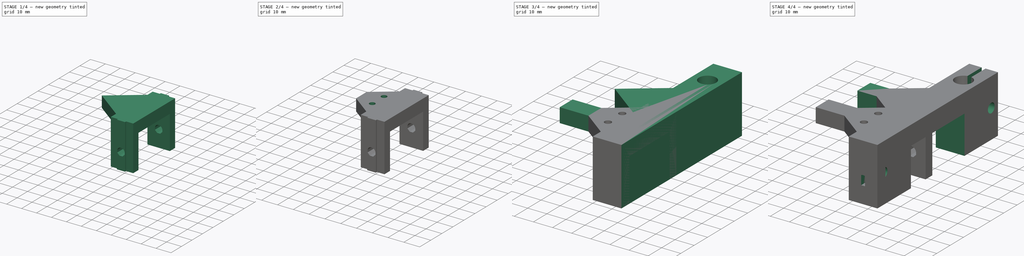
[diagram: build sequence overview — one tinted view per stage of 4, left to right]
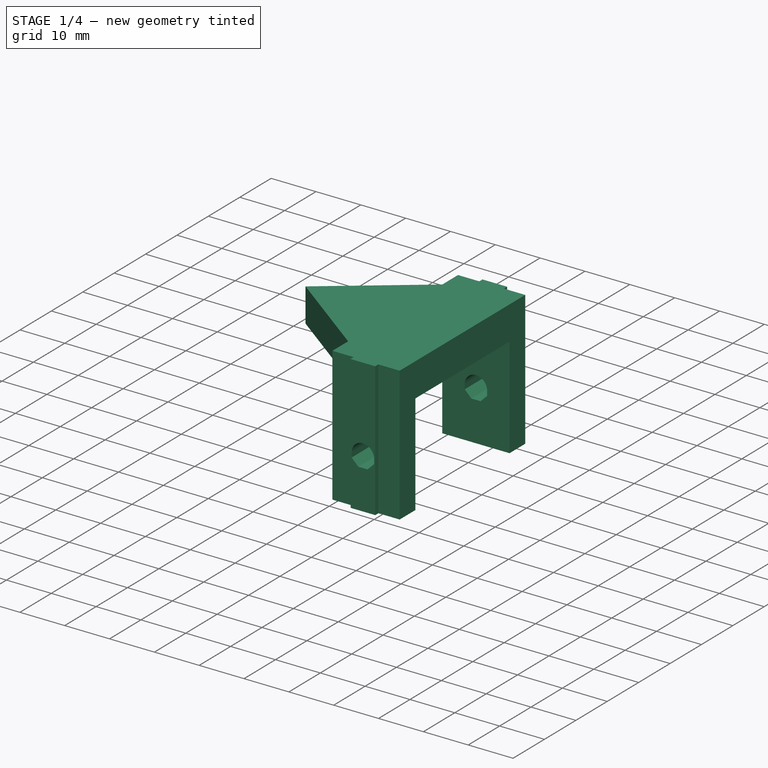
[diagram: stage 1 of 4 — iso view after this stage's code; geometry added in this stage tinted green]
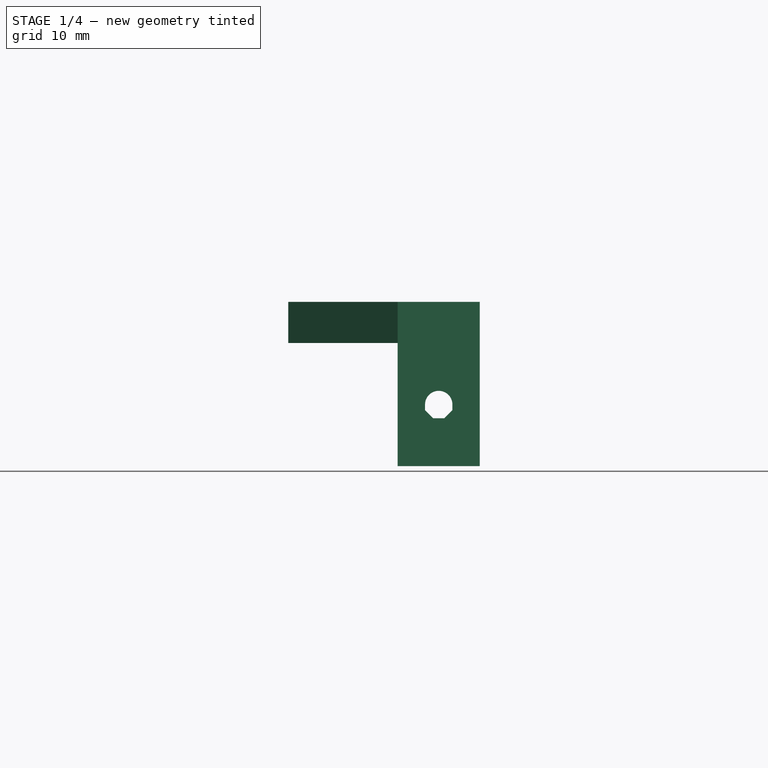
[diagram: stage 1 of 4 — front view after this stage's code; geometry added in this stage tinted green]
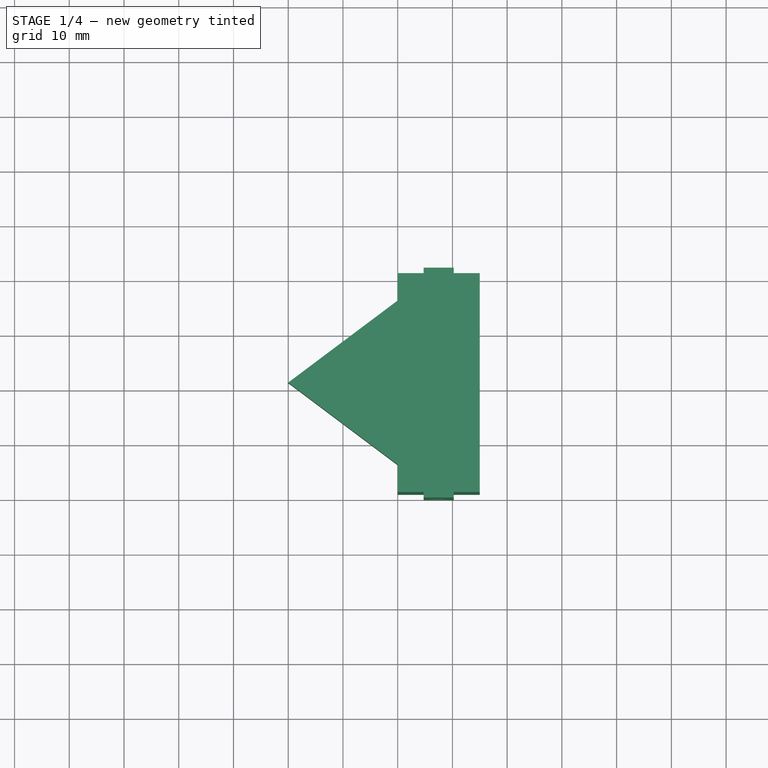
[diagram: stage 1 of 4 — top view after this stage's code; geometry added in this stage tinted green]
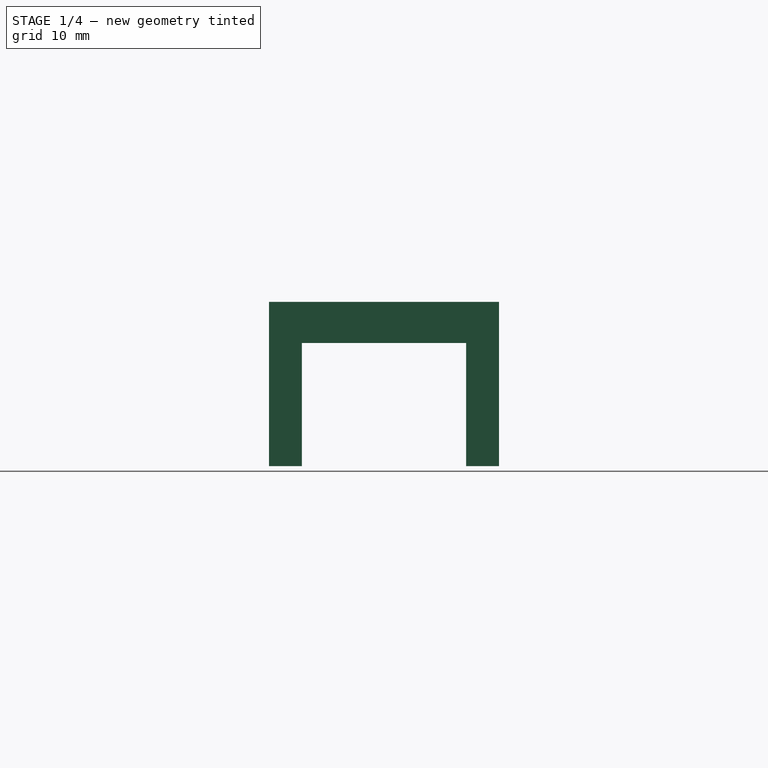
[diagram: stage 1 of 4 — right view after this stage's code; geometry added in this stage tinted green]
FCSTD DOCUMENT  (FreeCAD 0.16R5231 (Git))
Label: BuildPlatformMountingP1
License: All rights reserved
LicenseURL: http://en.wikipedia.org/wiki/All_rights_reserved
objects: Sketcher::SketchObject×12, PartDesign::Pocket×8, PartDesign::Pad×4, PartDesign::Chamfer×2, App::DocumentObjectGroup×1
note: 38 computed .brp shape members not serialized (recipe doc carries the construction recipe); baked Part::Feature solids carry a one-line shape summary decoded from their .brp

FEATURE [App::DocumentObjectGroup] Gruppe  label="alt"
  Group = -> [Pad,Pocket,Pocket001,Chamfer,Pad001]
FEATURE [Sketcher::SketchObject] Sketch004
  sketch-geometry (7):
    g0: LineSegment StartX=0 StartY=0 StartZ=0 EndX=15 EndY=0 EndZ=0
    g1: LineSegment StartX=15 StartY=0 StartZ=0 EndX=15 EndY=42 EndZ=0
    g2: LineSegment StartX=15 StartY=42 StartZ=0 EndX=0 EndY=42 EndZ=0
    g3: LineSegment StartX=0 StartY=42 StartZ=0 EndX=0 EndY=36 EndZ=0
    g4: LineSegment StartX=0 StartY=0 StartZ=0 EndX=0 EndY=6 EndZ=0
    g5: LineSegment StartX=0 StartY=36 StartZ=0 EndX=-20 EndY=21 EndZ=0
    g6: LineSegment StartX=-20 StartY=21 StartZ=0 EndX=0 EndY=6 EndZ=0
  constraints (20):
    c: Coincident(g0,g1)
    c: Coincident(g1,g2)
    c: Horizontal(g0)
    c: Horizontal(g2)
    c: Vertical(g1)
    c: Coincident(g0,g-1)
    c: DistanceX(g0) = 15
    c: DistanceY(g-1,g2) = 42
    c: Coincident(g3,g2)
    c: Vertical(g3)
    c: Coincident(g4,g-1)
    c: Vertical(g4)
    c: PointOnObject(g3,g-2)
    c: Coincident(g5,g3)
    c: Coincident(g6,g5)
    c: Coincident(g6,g4)
    c: Equal(g3,g4)
    c: Equal(g5,g6)
    c: DistanceY(g3,g4) = -30
    c: DistanceX(g5,g4) = 20
FEATURE [PartDesign::Pad] Pad002
  Length = 30
  Length2 = 100
  Sketch = -> Sketch004
  Type = 0
FEATURE [Sketcher::SketchObject] Sketch005
  ExternalGeometry = -> [Pad002]
  Placement = pos=(0,0,30) rot=(0,0,1;0rad)
  Support = -> Pad002 [Face9]
  sketch-geometry (16):
    g0: LineSegment StartX=0 StartY=42 StartZ=0 EndX=4.75 EndY=42 EndZ=0
    g1: LineSegment StartX=4.75 StartY=42 StartZ=0 EndX=4.75 EndY=41 EndZ=0
    g2: LineSegment StartX=4.75 StartY=41 StartZ=0 EndX=0 EndY=41 EndZ=0
    g3: LineSegment StartX=0 StartY=41 StartZ=0 EndX=0 EndY=42 EndZ=0
    g4: LineSegment StartX=15 StartY=42 StartZ=0 EndX=10.25 EndY=42 EndZ=0
    g5: LineSegment StartX=10.25 StartY=42 StartZ=0 EndX=10.25 EndY=41 EndZ=0
    g6: LineSegment StartX=10.25 StartY=41 StartZ=0 EndX=15 EndY=41 EndZ=0
    g7: LineSegment StartX=15 StartY=41 StartZ=0 EndX=15 EndY=42 EndZ=0
    g8: LineSegment StartX=0 StartY=0 StartZ=0 EndX=4.75 EndY=0 EndZ=0
    g9: LineSegment StartX=4.75 StartY=0 StartZ=0 EndX=4.75 EndY=1 EndZ=0
    g10: LineSegment StartX=4.75 StartY=1 StartZ=0 EndX=0 EndY=1 EndZ=0
    g11: LineSegment StartX=0 StartY=1 StartZ=0 EndX=0 EndY=0 EndZ=0
    g12: LineSegment StartX=15 StartY=0 StartZ=0 EndX=10.25 EndY=0 EndZ=0
    g13: LineSegment StartX=10.25 StartY=0 StartZ=0 EndX=10.25 EndY=1 EndZ=0
    g14: LineSegment StartX=10.25 StartY=1 StartZ=0 EndX=15 EndY=1 EndZ=0
    g15: LineSegment StartX=15 StartY=1 StartZ=0 EndX=15 EndY=0 EndZ=0
  constraints (44):
    c: Coincident(g0,g1)
    c: Coincident(g1,g2)
    c: Coincident(g2,g3)
    c: Coincident(g3,g0)
    c: Horizontal(g0)
    c: Horizontal(g2)
    c: Vertical(g1)
    c: Vertical(g3)
    c: Coincident(g0,g-3)
    c: Coincident(g4,g5)
    c: Coincident(g5,g6)
    c: Coincident(g6,g7)
    c: Coincident(g7,g4)
    c: Horizontal(g4)
    c: Horizontal(g6)
    c: Vertical(g5)
    c: Vertical(g7)
    c: Coincident(g4,g-3)
    c: Coincident(g8,g9)
    c: Coincident(g9,g10)
    c: Coincident(g10,g11)
    c: Coincident(g11,g8)
    c: Horizontal(g8)
    c: Horizontal(g10)
    c: Vertical(g9)
    c: Vertical(g11)
    c: Coincident(g8,g-1)
    c: Coincident(g12,g13)
    c: Coincident(g13,g14)
    c: Coincident(g14,g15)
    c: Coincident(g15,g12)
    c: Horizontal(g12)
    c: Horizontal(g14)
    c: Vertical(g13)
    c: Vertical(g15)
    c: Coincident(g12,g-4)
    c: Equal(g2,g6)
    c: Equal(g6,g10)
    c: Equal(g10,g14)
    c: Equal(g1,g5)
    c: Equal(g5,g9)
    c: Equal(g9,g13)
    c: DistanceX(g1,g5) = 5.5
    c: DistanceY(g7) = 1
FEATURE [PartDesign::Pocket] Pocket002
  Length = 30
  Sketch = -> Sketch005
  Type = 1
FEATURE [Sketcher::SketchObject] Sketch006
  ExternalGeometry = -> [Pocket002]
  Placement = pos=(15,0,0) rot=(0.57735,0.57735,0.57735;2.0944rad)
  Support = -> Pocket002 [Face8]
  sketch-geometry (4):
    g0: LineSegment StartX=6 StartY=0 StartZ=0 EndX=36 EndY=0 EndZ=0
    g1: LineSegment StartX=36 StartY=0 StartZ=0 EndX=36 EndY=22.5 EndZ=0
    g2: LineSegment StartX=36 StartY=22.5 StartZ=0 EndX=6 EndY=22.5 EndZ=0
    g3: LineSegment StartX=6 StartY=22.5 StartZ=0 EndX=6 EndY=0 EndZ=0
  constraints (12):
    c: Coincident(g0,g1)
    c: Coincident(g1,g2)
    c: Coincident(g2,g3)
    c: Coincident(g3,g0)
    c: Horizontal(g0)
    c: Horizontal(g2)
    c: Vertical(g1)
    c: Vertical(g3)
    c: PointOnObject(g0,g-3)
    c: DistanceY(g1,g-4) = 7.5
    c: DistanceX(g0,g-3) = 5
    c: DistanceX(g0,g-3) = -5
FEATURE [PartDesign::Pocket] Pocket003
  Length = 5
  Sketch = -> Sketch006
  Type = 1
FEATURE [Sketcher::SketchObject] Sketch007
  ExternalGeometry = -> [Pocket003]
  Placement = pos=(0,0,0) rot=(1,0,0;1.5708rad)
  Support = -> Pocket003 [Face1]
  sketch-geometry (12):
    g0: LineSegment [constr] StartX=7.5 StartY=11.25 StartZ=0 EndX=7.5 EndY=0 EndZ=0
    g1: ArcOfCircle CenterX=7.5 CenterY=11.25 CenterZ=0 NormalX=0 NormalY=0 NormalZ=1 Radius=2.5 StartAngle=0 EndAngle=3.14159
    g2: LineSegment [constr] StartX=5 StartY=11.25 StartZ=0 EndX=7.5 EndY=11.25 EndZ=0
    g3: LineSegment [constr] StartX=7.5 StartY=11.25 StartZ=0 EndX=10 EndY=11.25 EndZ=0
    g4: LineSegment [constr] StartX=10 StartY=11.25 StartZ=0 EndX=15 EndY=11.25 EndZ=0
    g5: ArcOfCircle [constr] CenterX=7.5 CenterY=11.25 CenterZ=0 NormalX=0 NormalY=0 NormalZ=1 Radius=2.5 StartAngle=3.14159 EndAngle=6.28319
    g6: LineSegment StartX=10 StartY=11.25 StartZ=0 EndX=10 EndY=10.2145 EndZ=0
    g7: LineSegment StartX=5 StartY=10.2145 StartZ=0 EndX=5 EndY=11.25 EndZ=0
    g8: LineSegment StartX=5 StartY=10.2145 StartZ=0 EndX=6.46447 EndY=8.75 EndZ=0
    g9: LineSegment StartX=10 StartY=10.2145 StartZ=0 EndX=8.53553 EndY=8.75 EndZ=0
    g10: LineSegment StartX=6.46447 StartY=8.75 StartZ=0 EndX=7.5 EndY=8.75 EndZ=0
    g11: LineSegment StartX=7.5 StartY=8.75 StartZ=0 EndX=8.53553 EndY=8.75 EndZ=0
  constraints (35):
    c: PointOnObject(g0,g-3)
    c: Vertical(g0)
    c: Symmetric(g-3,g-3,g0)
    c: Coincident(g1,g0)
    c: Radius(g1) = 2.5
    c: Coincident(g2,g1)
    c: Coincident(g2,g0)
    c: Horizontal(g2)
    c: Coincident(g3,g0)
    c: Coincident(g3,g1)
    c: Horizontal(g3)
    c: Coincident(g4,g1)
    c: PointOnObject(g4,g-4)
    c: Horizontal(g4)
    c: Symmetric(g-4,g-4,g4)
    c: Coincident(g5,g0)
    c: Coincident(g5,g1)
    c: PointOnObject(g5,g2)
    c: Vertical(g6)
    c: Coincident(g6,g1)
    c: Vertical(g7)
    c: Coincident(g7,g1)
    c: Coincident(g8,g7)
    c: Coincident(g9,g6)
    c: Tangent(g9,g5)
    c: Tangent(g8,g5)
    c: Horizontal(g10)
    c: Coincident(g10,g11)
    c: Horizontal(g11)
    c: Coincident(g10,g8)
    c: Coincident(g11,g9)
    c: Tangent(g11,g5)
    c: Equal(g7,g10)
    c: Equal(g10,g11)
    c: Equal(g11,g6)
FEATURE [PartDesign::Pocket] Pocket004
  Length = 5
  Sketch = -> Sketch007
  Type = 1
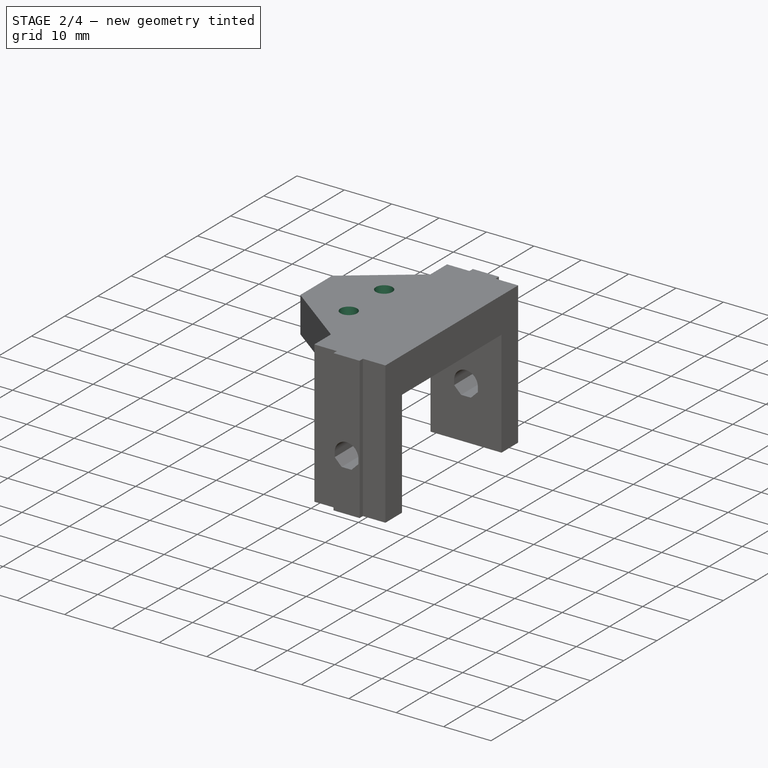
[diagram: stage 2 of 4 — iso view after this stage's code; geometry added in this stage tinted green]
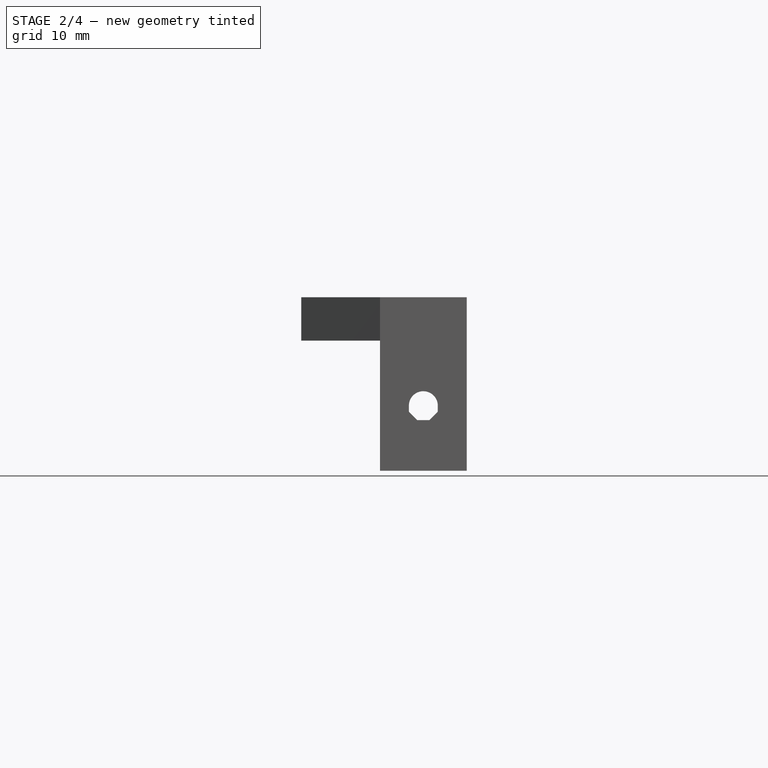
[diagram: stage 2 of 4 — front view after this stage's code; geometry added in this stage tinted green]
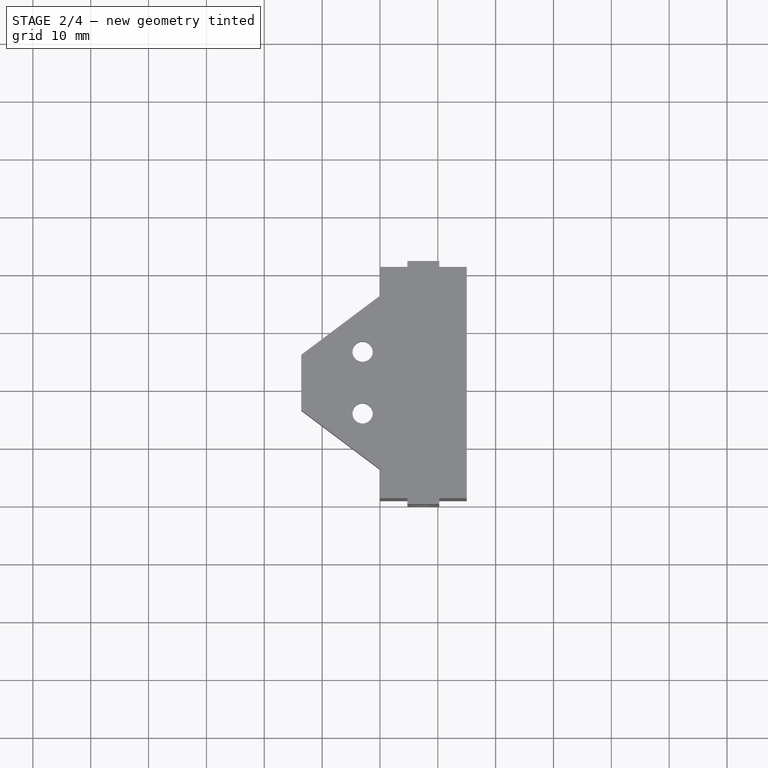
[diagram: stage 2 of 4 — top view after this stage's code; geometry added in this stage tinted green]
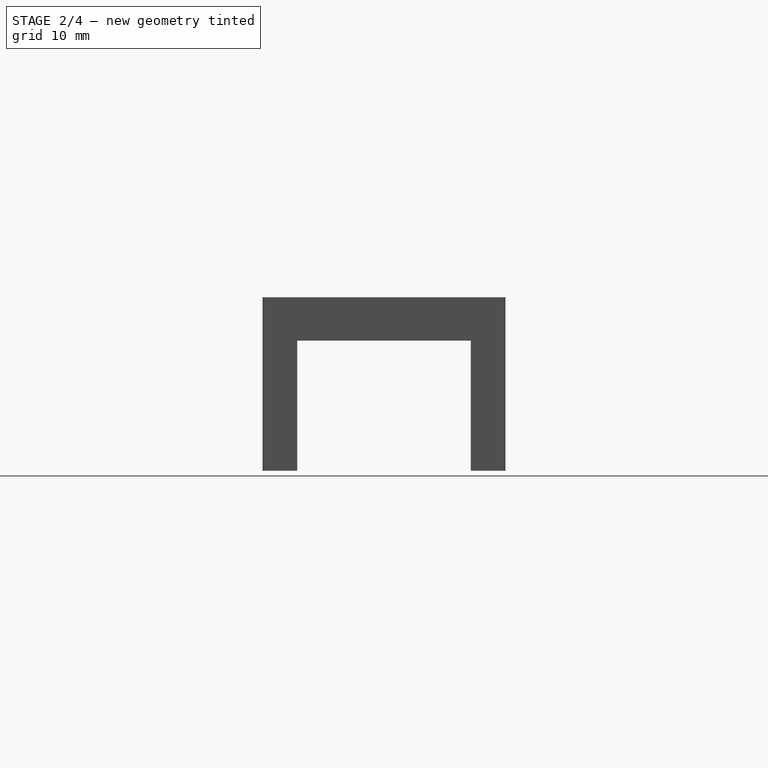
[diagram: stage 2 of 4 — right view after this stage's code; geometry added in this stage tinted green]
FEATURE [Sketcher::SketchObject] Sketch008
  ExternalGeometry = -> [Pocket004]
  Placement = pos=(0,0,22.5) rot=(1,0,0;3.14159rad)
  Support = -> Pocket004 [Face26]
  sketch-geometry (19):
    g0: Circle [constr] CenterX=-3 CenterY=-15.6667 CenterZ=0 NormalX=0 NormalY=0 NormalZ=1 Radius=2.81458
    g1: LineSegment [constr] StartX=-3 StartY=-12.4167 StartZ=0 EndX=-3 EndY=-18.9167 EndZ=0
    g2: LineSegment StartX=-3 StartY=-12.4167 StartZ=0 EndX=-5.81458 EndY=-14.0417 EndZ=0
    g3: LineSegment StartX=-5.81458 StartY=-14.0417 StartZ=0 EndX=-5.81458 EndY=-17.2917 EndZ=0
    g4: LineSegment StartX=-5.81458 StartY=-17.2917 StartZ=0 EndX=-3 EndY=-18.9167 EndZ=0
    g5: LineSegment StartX=-3 StartY=-18.9167 StartZ=0 EndX=-0.185417 EndY=-17.2917 EndZ=0
    g6: LineSegment StartX=-0.185417 StartY=-17.2917 StartZ=0 EndX=-0.185417 EndY=-14.0417 EndZ=0
    g7: LineSegment StartX=-0.185417 StartY=-14.0417 StartZ=0 EndX=-3 EndY=-12.4167 EndZ=0
    g8: Circle [constr] CenterX=-3 CenterY=-26.3333 CenterZ=0 NormalX=0 NormalY=0 NormalZ=1 Radius=2.81458
    g9: LineSegment [constr] StartX=-3 StartY=-23.0833 StartZ=0 EndX=-3 EndY=-29.5833 EndZ=0
    g10: LineSegment StartX=-3 StartY=-23.0833 StartZ=0 EndX=-5.81458 EndY=-24.7083 EndZ=0
    g11: LineSegment StartX=-5.81458 StartY=-24.7083 StartZ=0 EndX=-5.81458 EndY=-27.9583 EndZ=0
    g12: LineSegment StartX=-5.81458 StartY=-27.9583 StartZ=0 EndX=-3 EndY=-29.5833 EndZ=0
    g13: LineSegment StartX=-3 StartY=-29.5833 StartZ=0 EndX=-0.185417 EndY=-27.9583 EndZ=0
    g14: LineSegment StartX=-0.185417 StartY=-27.9583 StartZ=0 EndX=-0.185417 EndY=-24.7083 EndZ=0
    g15: LineSegment StartX=-0.185417 StartY=-24.7083 StartZ=0 EndX=-3 EndY=-23.0833 EndZ=0
    g16: LineSegment [constr] StartX=-3 StartY=-12.4167 StartZ=0 EndX=-3 EndY=-8.25 EndZ=0
    g17: LineSegment [constr] StartX=-3 StartY=-18.9167 StartZ=0 EndX=-3 EndY=-23.0833 EndZ=0
    g18: LineSegment [constr] StartX=-3 StartY=-29.5833 StartZ=0 EndX=-3 EndY=-33.75 EndZ=0
  constraints (52):
    c: Vertical(g1)
    c: Symmetric(g1,g1,g0)
    c: Coincident(g1,g2)
    c: Coincident(g2,g3)
    c: Vertical(g3)
    c: Coincident(g3,g4)
    c: Coincident(g4,g5)
    c: Coincident(g5,g6)
    c: Vertical(g6)
    c: Coincident(g6,g7)
    c: Coincident(g7,g2)
    c: Coincident(g1,g4)
    c: Equal(g2,g7)
    c: Equal(g7,g6)
    c: Equal(g6,g5)
    c: Equal(g5,g4)
    c: Equal(g4,g3)
    c: Tangent(g6,g0)
    c: Tangent(g7,g0)
    c: DistanceY(g1) = -6.5
    c: Vertical(g9)
    c: Symmetric(g9,g9,g8)
    c: Coincident(g9,g10)
    c: Coincident(g10,g11)
    c: Vertical(g11)
    c: Coincident(g11,g12)
    c: Coincident(g12,g9)
    c: Coincident(g12,g13)
    c: Coincident(g13,g14)
    c: Vertical(g14)
    c: Coincident(g14,g15)
    c: Coincident(g15,g10)
    c: Equal(g10,g15)
    c: Equal(g15,g14)
    c: Equal(g14,g13)
    c: Equal(g13,g12)
    c: Equal(g12,g11)
    c: Tangent(g14,g8)
    c: Tangent(g15,g8)
    c: Equal(g9,g1)
    c: Coincident(g16,g1)
    c: PointOnObject(g16,g-3)
    c: Vertical(g16)
    c: Coincident(g17,g1)
    c: Coincident(g17,g9)
    c: Vertical(g17)
    c: Coincident(g18,g9)
    c: PointOnObject(g18,g-4)
    c: Vertical(g18)
    c: Equal(g16,g17)
    c: Equal(g17,g18)
    c: DistanceX(g16,g-3) = 3
FEATURE [PartDesign::Pocket] Pocket005
  Length = 3
  Sketch = -> Sketch008
  Type = 0
FEATURE [Sketcher::SketchObject] Sketch009
  ExternalGeometry = -> [Pocket005]
  Placement = pos=(0,0,30) rot=(0,0,1;0rad)
  Support = -> Pocket005 [Face3]
  sketch-geometry (4):
    g0: LineSegment [constr] StartX=-3 StartY=23.0833 StartZ=0 EndX=-3 EndY=29.5833 EndZ=0
    g1: LineSegment [constr] StartX=-3 StartY=18.9167 StartZ=0 EndX=-3 EndY=12.4167 EndZ=0
    g2: Circle CenterX=-3 CenterY=26.3333 CenterZ=0 NormalX=0 NormalY=0 NormalZ=1 Radius=1.75
    g3: Circle CenterX=-3 CenterY=15.6667 CenterZ=0 NormalX=0 NormalY=0 NormalZ=1 Radius=1.75
  constraints (10):
    c: Coincident(g0,g-5)
    c: Coincident(g0,g-6)
    c: Coincident(g1,g-4)
    c: Coincident(g1,g-3)
    c: PointOnObject(g2,g0)
    c: PointOnObject(g3,g1)
    c: Symmetric(g0,g0,g2)
    c: Symmetric(g1,g1,g3)
    c: Equal(g3,g2)
    c: Radius(g2) = 1.75
FEATURE [PartDesign::Pocket] Pocket006
  Length = 5
  Sketch = -> Sketch009
  Type = 1
FEATURE [PartDesign::Chamfer] Chamfer001
  Base = -> Pocket006 [Edge61]
  Size = 8
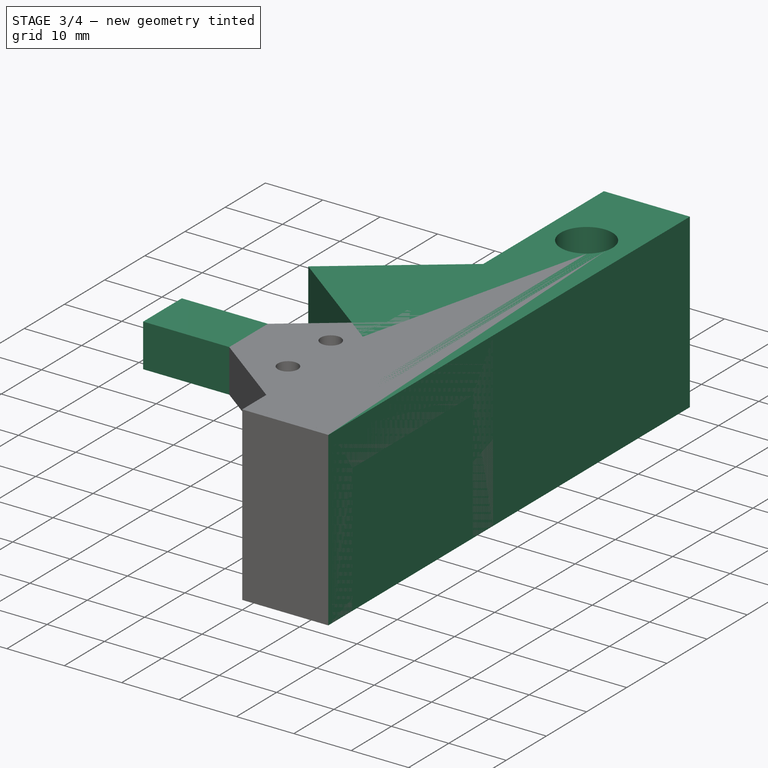
[diagram: stage 3 of 4 — iso view after this stage's code; geometry added in this stage tinted green]
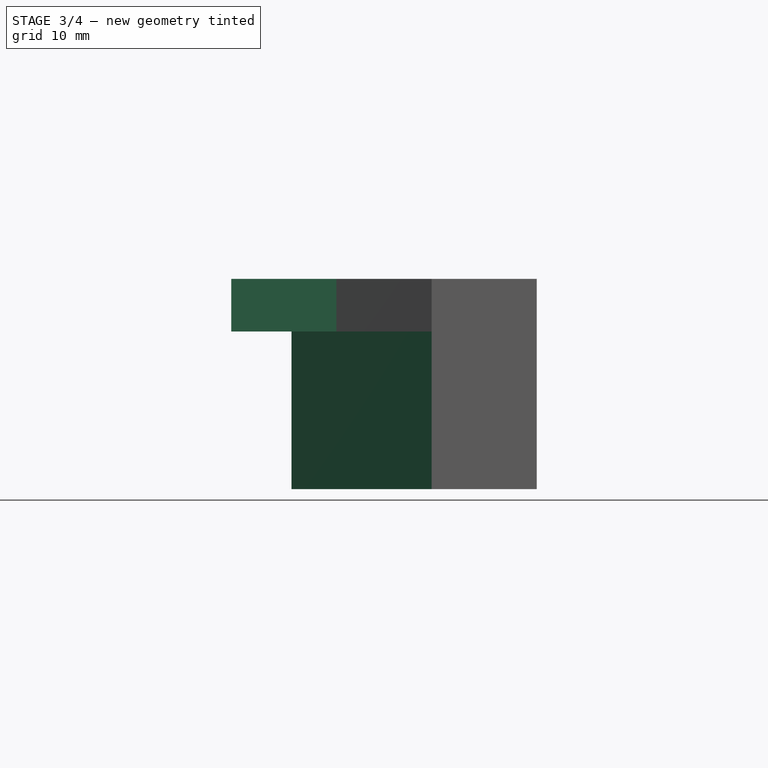
[diagram: stage 3 of 4 — front view after this stage's code; geometry added in this stage tinted green]
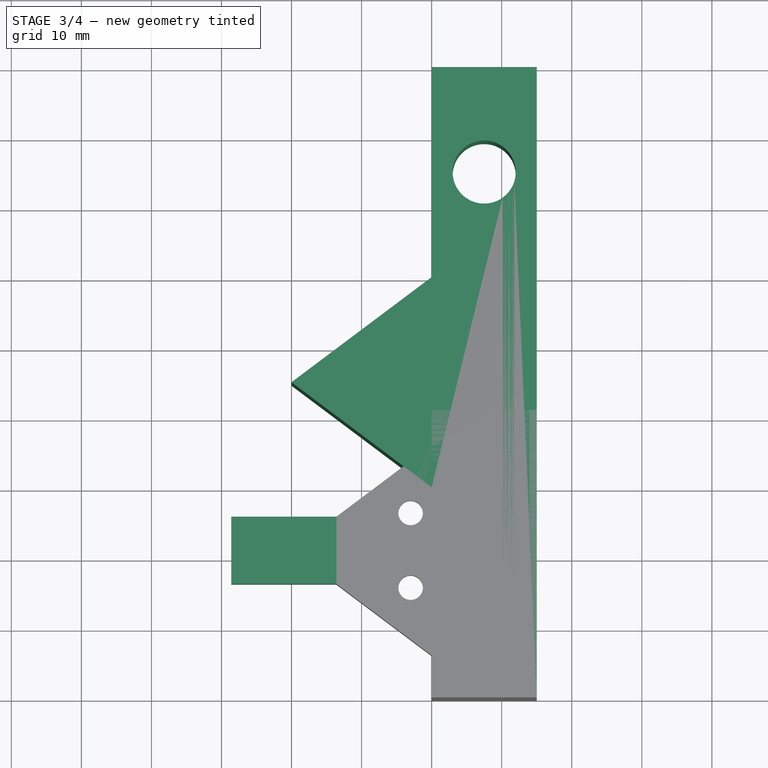
[diagram: stage 3 of 4 — top view after this stage's code; geometry added in this stage tinted green]
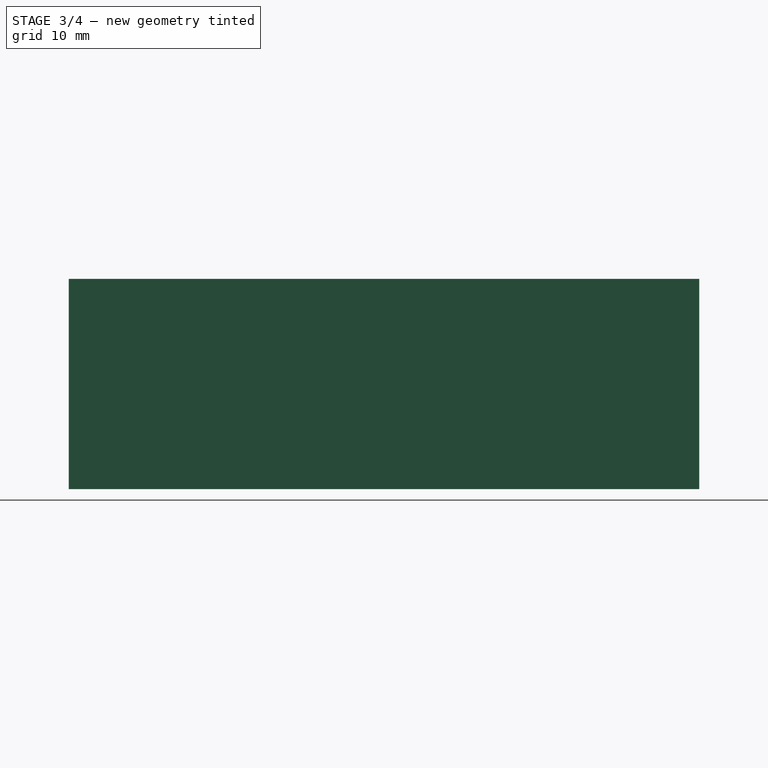
[diagram: stage 3 of 4 — right view after this stage's code; geometry added in this stage tinted green]
FEATURE [Sketcher::SketchObject] Sketch
  sketch-geometry (12):
    g0: LineSegment StartX=0 StartY=0 StartZ=0 EndX=15 EndY=0 EndZ=0
    g1: LineSegment StartX=15 StartY=0 StartZ=0 EndX=15 EndY=90 EndZ=0
    g2: LineSegment StartX=15 StartY=90 StartZ=0 EndX=0 EndY=90 EndZ=0
    g3: Circle CenterX=7.5 CenterY=15 CenterZ=0 NormalX=0 NormalY=0 NormalZ=1 Radius=4.5
    g4: Circle CenterX=7.5 CenterY=75 CenterZ=0 NormalX=0 NormalY=0 NormalZ=1 Radius=4.5
    g5: LineSegment StartX=0 StartY=90 StartZ=0 EndX=0 EndY=60 EndZ=0
    g6: LineSegment StartX=0 StartY=0 StartZ=0 EndX=0 EndY=30 EndZ=0
    g7: LineSegment StartX=0 StartY=60 StartZ=0 EndX=-20 EndY=45 EndZ=0
    g8: LineSegment StartX=-20 StartY=45 StartZ=0 EndX=0 EndY=30 EndZ=0
    g9: LineSegment [constr] StartX=7.5 StartY=90 StartZ=0 EndX=7.5 EndY=75 EndZ=0
    g10: LineSegment [constr] StartX=7.5 StartY=75 StartZ=0 EndX=7.5 EndY=15 EndZ=0
    g11: LineSegment [constr] StartX=7.5 StartY=15 StartZ=0 EndX=7.5 EndY=0 EndZ=0
  constraints (34):
    c: Coincident(g0,g1)
    c: Coincident(g1,g2)
    c: Horizontal(g0)
    c: Horizontal(g2)
    c: Vertical(g1)
    c: Coincident(g0,g-1)
    c: Equal(g4,g3)
    c: Radius(g3) = 4.5
    c: DistanceX(g0) = 15
    c: DistanceY(g4,g3) = -60
    c: DistanceY(g-1,g2) = 90
    c: Coincident(g5,g2)
    c: Vertical(g5)
    c: Coincident(g6,g-1)
    c: Vertical(g6)
    c: PointOnObject(g5,g-2)
    c: Coincident(g7,g5)
    c: Coincident(g8,g7)
    c: Coincident(g8,g6)
    c: Equal(g5,g6)
    c: Equal(g7,g8)
    c: DistanceY(g5,g6) = -30
    c: DistanceX(g7,g6) = 20
    c: PointOnObject(g9,g2)
    c: Coincident(g9,g4)
    c: Vertical(g9)
    c: Coincident(g10,g4)
    c: Coincident(g10,g3)
    c: Vertical(g10)
    c: Coincident(g11,g3)
    c: PointOnObject(g11,g0)
    c: Vertical(g11)
    c: Equal(g9,g11)
    c: Symmetric(g2,g2,g9)
FEATURE [PartDesign::Pad] Pad
  Length = 30
  Length2 = 100
  Sketch = -> Sketch
  Type = 0
FEATURE [Sketcher::SketchObject] Sketch010
  ExternalGeometry = -> [Chamfer001]
  Placement = pos=(-13.6,0,0) rot=(0.57735,-0.57735,-0.57735;2.0944rad)
  Support = -> Chamfer001 [Face3]
  sketch-geometry (4):
    g0: LineSegment StartX=-25.8 StartY=30 StartZ=0 EndX=-16.2 EndY=30 EndZ=0
    g1: LineSegment StartX=-16.2 StartY=30 StartZ=0 EndX=-16.2 EndY=22.5 EndZ=0
    g2: LineSegment StartX=-16.2 StartY=22.5 StartZ=0 EndX=-25.8 EndY=22.5 EndZ=0
    g3: LineSegment StartX=-25.8 StartY=22.5 StartZ=0 EndX=-25.8 EndY=30 EndZ=0
  constraints (10):
    c: Coincident(g0,g1)
    c: Coincident(g1,g2)
    c: Coincident(g2,g3)
    c: Coincident(g3,g0)
    c: Horizontal(g0)
    c: Horizontal(g2)
    c: Vertical(g1)
    c: Vertical(g3)
    c: Coincident(g0,g-3)
    c: Coincident(g1,g-4)
FEATURE [PartDesign::Pad] Pad003
  Length = 15
  Length2 = 100
  Sketch = -> Sketch010
  Type = 0
FEATURE [Sketcher::SketchObject] Sketch011
  ExternalGeometry = -> [Pad003]
  Placement = pos=(0,0,22.5) rot=(1,0,0;3.14159rad)
  Support = -> Pad003 [Face4]
  sketch-geometry (3):
    g0: Circle CenterX=-23.8 CenterY=-21 CenterZ=0 NormalX=0 NormalY=0 NormalZ=1 Radius=3.5
    g1: LineSegment [constr] StartX=-23.8 StartY=-21 StartZ=0 EndX=-23.8 EndY=-16.2 EndZ=0
    g2: LineSegment [constr] StartX=-23.8 StartY=-21 StartZ=0 EndX=-28.6 EndY=-21 EndZ=0
  constraints (9):
    c: Radius(g0) = 3.5
    c: Coincident(g1,g0)
    c: PointOnObject(g1,g-3)
    c: Vertical(g1)
    c: Coincident(g2,g0)
    c: PointOnObject(g2,g-4)
    c: Horizontal(g2)
    c: Equal(g1,g2)
    c: Symmetric(g-4,g-4,g2)
FEATURE [PartDesign::Pocket] Pocket007  label="BuildPlatformMountingP1"
  Length = 0.5
  Sketch = -> Sketch011
  Type = 0
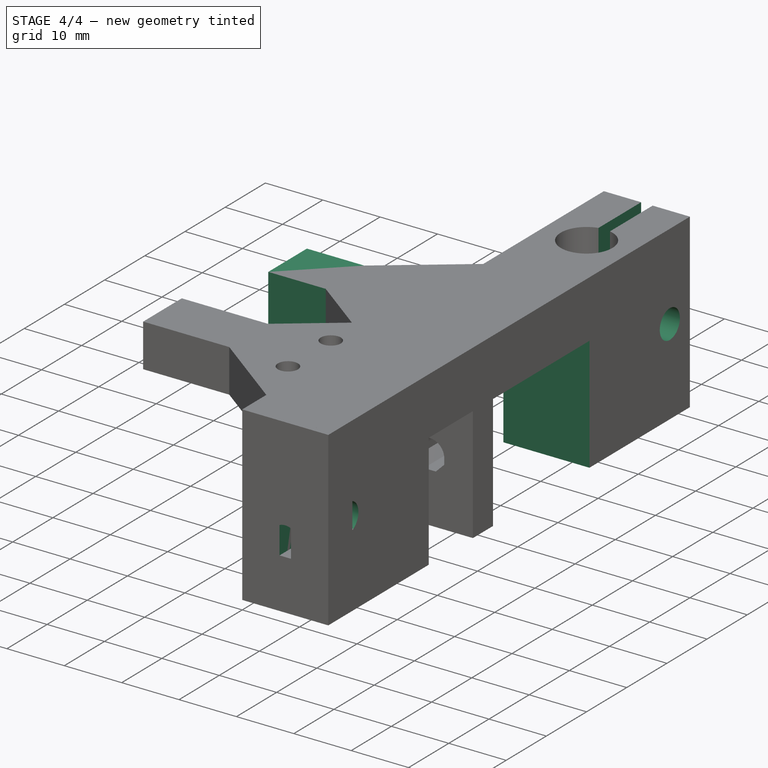
[diagram: stage 4 of 4 — iso view after this stage's code; geometry added in this stage tinted green]
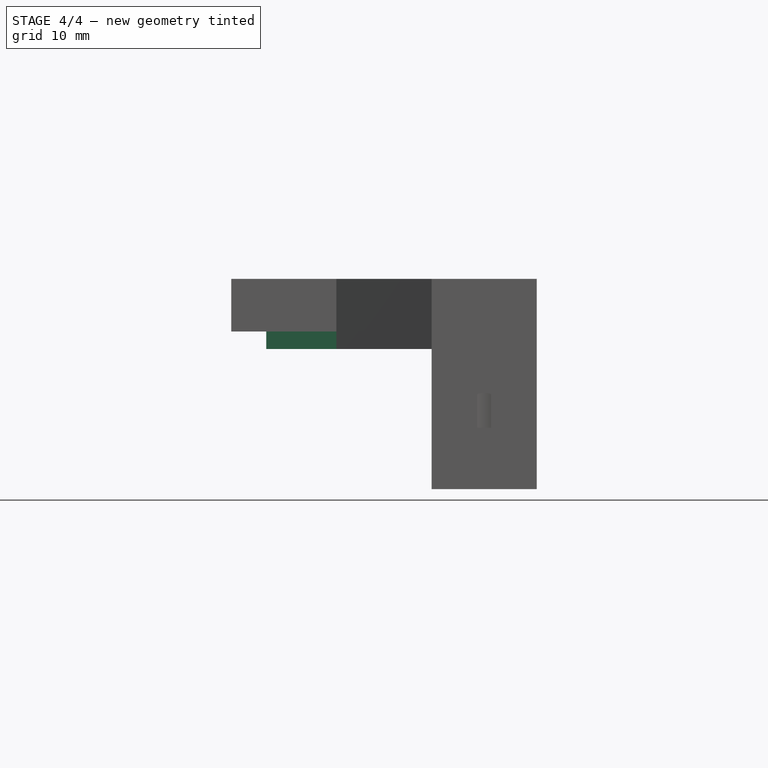
[diagram: stage 4 of 4 — front view after this stage's code; geometry added in this stage tinted green]
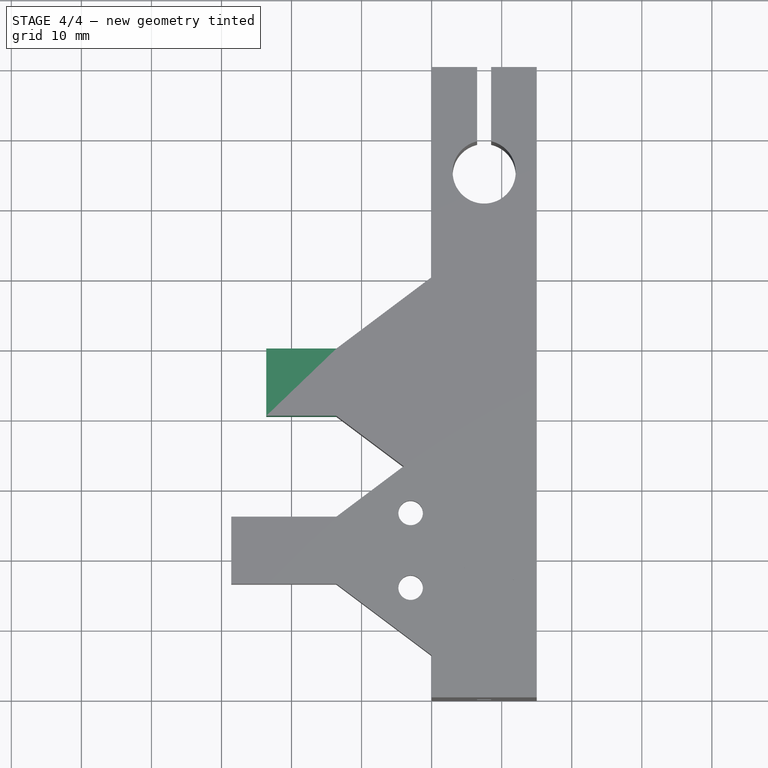
[diagram: stage 4 of 4 — top view after this stage's code; geometry added in this stage tinted green]
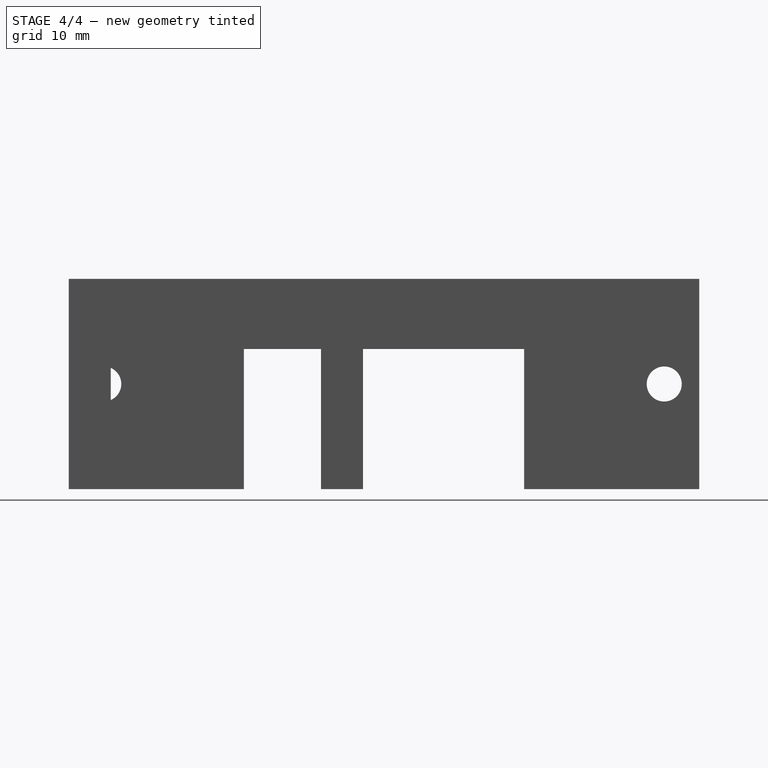
[diagram: stage 4 of 4 — right view after this stage's code; geometry added in this stage tinted green]
FEATURE [Sketcher::SketchObject] Sketch001
  ExternalGeometry = -> [Pad]
  Placement = pos=(0,0,30) rot=(0,0,1;0rad)
  Support = -> Pad [Face11]
  sketch-geometry (8):
    g0: LineSegment StartX=6.5 StartY=90 StartZ=0 EndX=8.5 EndY=90 EndZ=0
    g1: LineSegment StartX=8.5 StartY=90 StartZ=0 EndX=8.5 EndY=75 EndZ=0
    g2: LineSegment StartX=8.5 StartY=75 StartZ=0 EndX=6.5 EndY=75 EndZ=0
    g3: LineSegment StartX=6.5 StartY=75 StartZ=0 EndX=6.5 EndY=90 EndZ=0
    g4: LineSegment StartX=6.5 StartY=0 StartZ=0 EndX=8.5 EndY=0 EndZ=0
    g5: LineSegment StartX=8.5 StartY=0 StartZ=0 EndX=8.5 EndY=15 EndZ=0
    g6: LineSegment StartX=8.5 StartY=15 StartZ=0 EndX=6.5 EndY=15 EndZ=0
    g7: LineSegment StartX=6.5 StartY=15 StartZ=0 EndX=6.5 EndY=0 EndZ=0
  constraints (22):
    c: Coincident(g0,g1)
    c: Coincident(g1,g2)
    c: Coincident(g2,g3)
    c: Coincident(g3,g0)
    c: Horizontal(g0)
    c: Horizontal(g2)
    c: Vertical(g1)
    c: Vertical(g3)
    c: PointOnObject(g0,g-5)
    c: Coincident(g4,g5)
    c: Coincident(g5,g6)
    c: Coincident(g6,g7)
    c: Coincident(g7,g4)
    c: Horizontal(g4)
    c: Horizontal(g6)
    c: Vertical(g5)
    c: Vertical(g7)
    c: PointOnObject(g4,g-6)
    c: Symmetric(g2,g2,g-3)
    c: Symmetric(g6,g6,g-4)
    c: Equal(g2,g6)
    c: DistanceX(g2) = -2
FEATURE [PartDesign::Pocket] Pocket
  Length = 30
  Sketch = -> Sketch001
  Type = 0
FEATURE [Sketcher::SketchObject] Sketch002
  ExternalGeometry = -> [Pocket]
  Placement = pos=(15,0,0) rot=(0.57735,0.57735,0.57735;2.0944rad)
  Support = -> Pocket [Face10]
  sketch-geometry (13):
    g0: Circle CenterX=5 CenterY=15 CenterZ=0 NormalX=0 NormalY=0 NormalZ=1 Radius=2.5
    g1: Circle CenterX=85 CenterY=15 CenterZ=0 NormalX=0 NormalY=0 NormalZ=1 Radius=2.5
    g2: LineSegment StartX=25 StartY=0 StartZ=0 EndX=65 EndY=0 EndZ=0
    g3: LineSegment StartX=65 StartY=0 StartZ=0 EndX=65 EndY=20 EndZ=0
    g4: LineSegment StartX=65 StartY=20 StartZ=0 EndX=25 EndY=20 EndZ=0
    g5: LineSegment StartX=25 StartY=20 StartZ=0 EndX=25 EndY=0 EndZ=0
    g6: LineSegment [constr] StartX=25 StartY=30 StartZ=0 EndX=25 EndY=20 EndZ=0
    g7: LineSegment [constr] StartX=65 StartY=30 StartZ=0 EndX=65 EndY=20 EndZ=0
    g8: LineSegment [constr] StartX=5 StartY=15 StartZ=0 EndX=0 EndY=15 EndZ=0
    g9: LineSegment [constr] StartX=5 StartY=15 StartZ=0 EndX=85 EndY=15 EndZ=0
    g10: LineSegment [constr] StartX=85 StartY=15 StartZ=0 EndX=90 EndY=15 EndZ=0
    g11: LineSegment [constr] StartX=0 StartY=30 StartZ=0 EndX=25 EndY=30 EndZ=0
    g12: LineSegment [constr] StartX=65 StartY=30 StartZ=0 EndX=90 EndY=30 EndZ=0
  constraints (36):
    c: Equal(g1,g0)
    c: Radius(g0) = 2.5
    c: Coincident(g2,g3)
    c: Coincident(g3,g4)
    c: Coincident(g4,g5)
    c: Coincident(g5,g2)
    c: Horizontal(g2)
    c: Horizontal(g4)
    c: Vertical(g3)
    c: Vertical(g5)
    c: PointOnObject(g2,g-5)
    c: Coincident(g6,g4)
    c: Vertical(g6)
    c: Coincident(g7,g3)
    c: Vertical(g7)
    c: DistanceY(g3) = 20
    c: Coincident(g8,g0)
    c: PointOnObject(g8,g-3)
    c: Horizontal(g8)
    c: Coincident(g9,g0)
    c: Coincident(g9,g1)
    c: Horizontal(g9)
    c: Coincident(g10,g1)
    c: PointOnObject(g10,g-4)
    c: Horizontal(g10)
    c: Equal(g8,g10)
    c: Symmetric(g-4,g-4,g10)
    c: DistanceX(g8) = -5
    c: Coincident(g11,g-3)
    c: Coincident(g11,g6)
    c: Horizontal(g11)
    c: Coincident(g12,g7)
    c: Coincident(g12,g-4)
    c: Horizontal(g12)
    c: Equal(g11,g12)
    c: DistanceX(g11) = 25
FEATURE [PartDesign::Pocket] Pocket001
  Length = 35
  Sketch = -> Sketch002
  Type = 0
FEATURE [PartDesign::Chamfer] Chamfer
  Base = -> Pocket001 [Edge69]
  Size = 8
FEATURE [Sketcher::SketchObject] Sketch003
  ExternalGeometry = -> [Chamfer]
  Placement = pos=(-13.6,0,0) rot=(0.57735,-0.57735,-0.57735;2.0944rad)
  Support = -> Chamfer [Face3]
  sketch-geometry (4):
    g0: LineSegment StartX=-49.8 StartY=30 StartZ=0 EndX=-40.2 EndY=30 EndZ=0
    g1: LineSegment StartX=-40.2 StartY=30 StartZ=0 EndX=-40.2 EndY=20 EndZ=0
    g2: LineSegment StartX=-40.2 StartY=20 StartZ=0 EndX=-49.8 EndY=20 EndZ=0
    g3: LineSegment StartX=-49.8 StartY=20 StartZ=0 EndX=-49.8 EndY=30 EndZ=0
  constraints (10):
    c: Coincident(g0,g1)
    c: Coincident(g1,g2)
    c: Coincident(g2,g3)
    c: Coincident(g3,g0)
    c: Horizontal(g0)
    c: Horizontal(g2)
    c: Vertical(g1)
    c: Vertical(g3)
    c: Coincident(g0,g-3)
    c: Coincident(g1,g-4)
FEATURE [PartDesign::Pad] Pad001  label="BuildPlatformMountingP1_alt"
  Length = 10
  Length2 = 100
  Sketch = -> Sketch003
  Type = 0
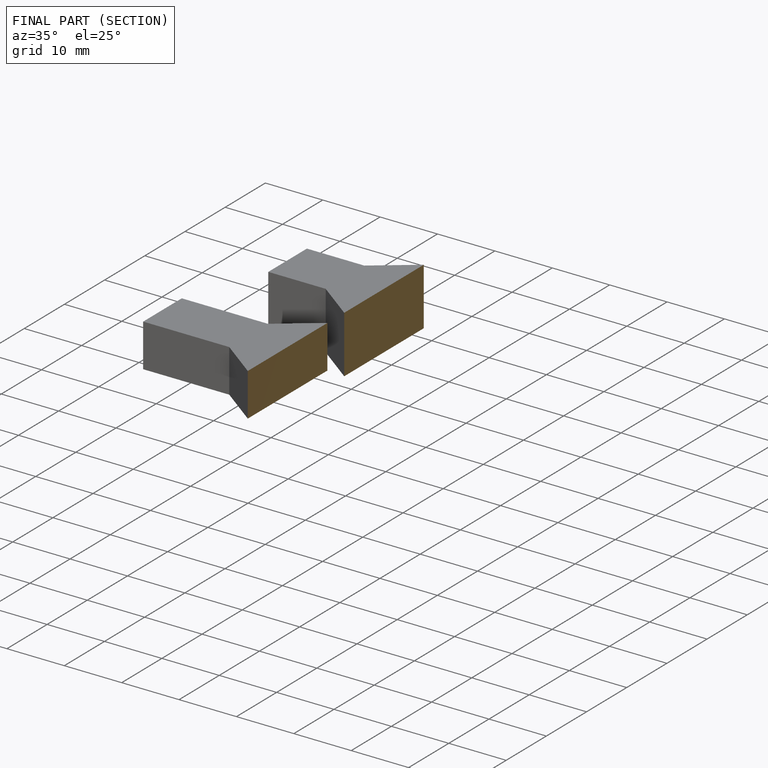
[diagram: finished part — half-section view (interior)]
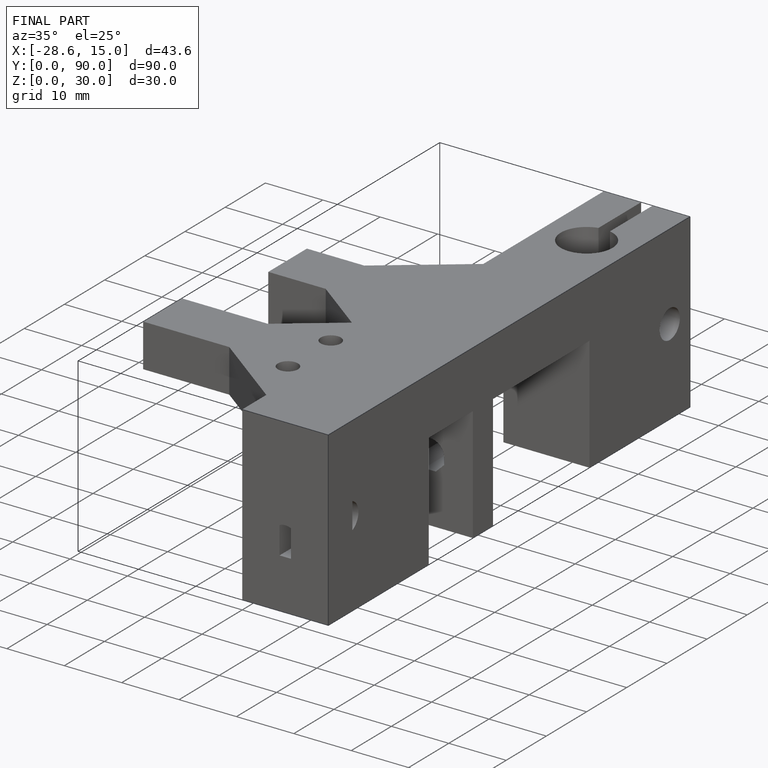
[diagram: finished part — iso view with bounding-box wireframe]
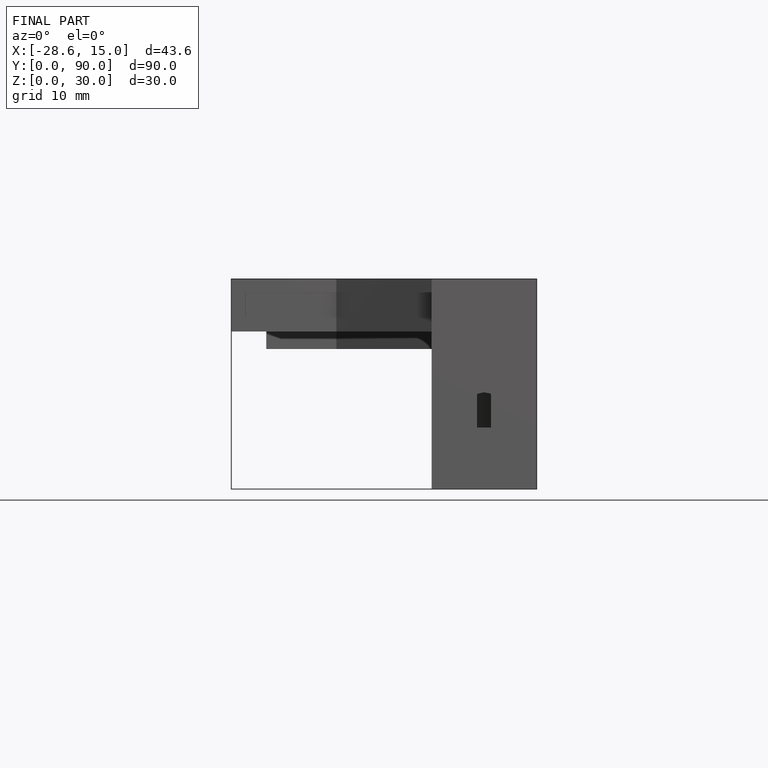
[diagram: finished part — front view with bounding-box wireframe]
